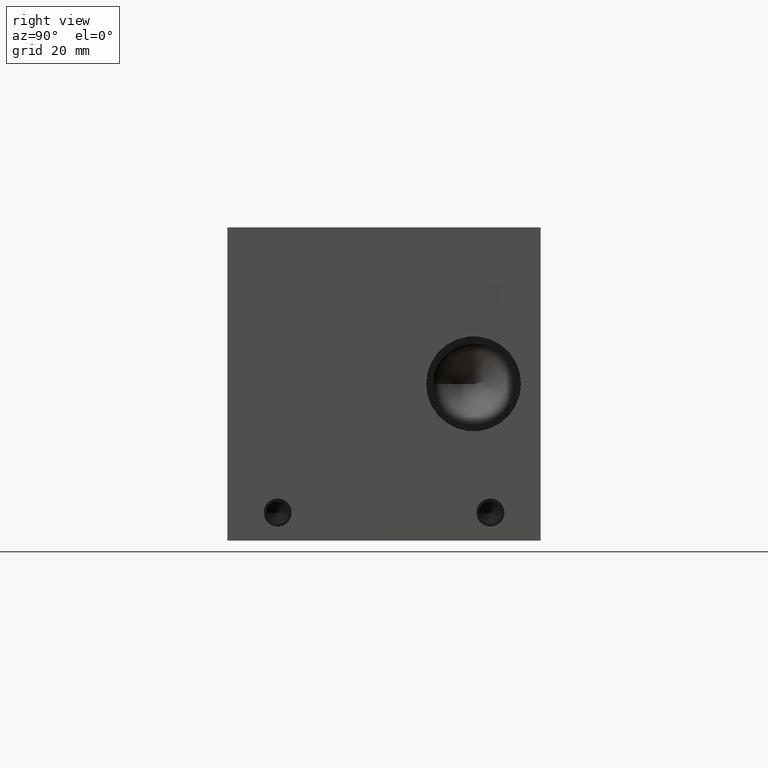
[diagram: clean part render]
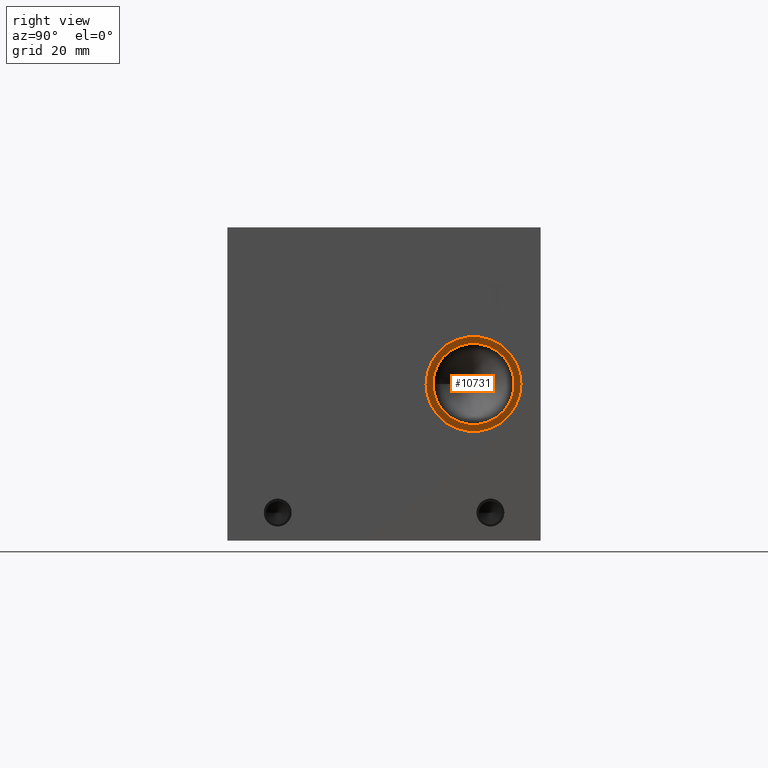
[diagram: same view with one face highlighted and labeled with its STEP entity id]
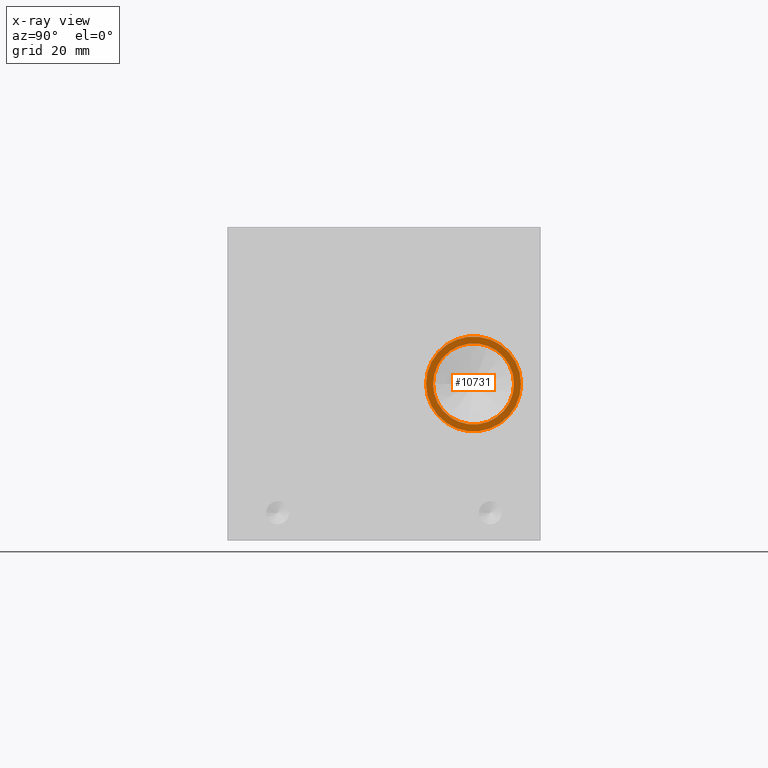
[diagram: x-ray of the same camera — body ghosted, the highlighted face saturated]
A machine part, right view. The second image highlights one B-rep face of the part: STEP entity #10731.
The next image is the same camera in x-ray: the body ghosted, the highlighted face saturated — about 0% of this face is hidden behind the body in this view.
In plain terms, the highlighted planar face has unit normal (1, 0, 0).
Its self-contained STEP definition (entity closure, byte-faithful):
#105=CIRCLE('',#11159,13.462);
#106=CIRCLE('',#11160,13.462);
#107=CIRCLE('',#11161,11.5062);
#300=FACE_BOUND('',#1866,.T.);
#1265=FACE_OUTER_BOUND('',#1865,.T.);
#1865=EDGE_LOOP('',(#9024,#9025));
#1866=EDGE_LOOP('',(#9026));
#4872=VERTEX_POINT('',#18148);
#4873=VERTEX_POINT('',#18149);
#4874=VERTEX_POINT('',#18152);
#6312=EDGE_CURVE('',#4872,#4873,#105,.T.);
#6313=EDGE_CURVE('',#4873,#4872,#106,.T.);
#6314=EDGE_CURVE('',#4874,#4874,#107,.T.);
#9024=ORIENTED_EDGE('',*,*,#6312,.T.);
#9025=ORIENTED_EDGE('',*,*,#6313,.T.);
#9026=ORIENTED_EDGE('',*,*,#6314,.F.);
#9811=PLANE('',#11158);
#10731=ADVANCED_FACE('',(#1265,#300),#9811,.T.);
#11158=AXIS2_PLACEMENT_3D('',#18147,#12969,#12970);
#11159=AXIS2_PLACEMENT_3D('',#18150,#12971,#12972);
#11160=AXIS2_PLACEMENT_3D('',#18151,#12973,#12974);
#11161=AXIS2_PLACEMENT_3D('',#18153,#12975,#12976);
#12969=DIRECTION('center_axis',(1.,0.,0.));
#12970=DIRECTION('ref_axis',(0.,1.,0.));
#12971=DIRECTION('center_axis',(1.,0.,0.));
#12972=DIRECTION('ref_axis',(0.,1.,0.));
#12973=DIRECTION('center_axis',(1.,0.,0.));
#12974=DIRECTION('ref_axis',(0.,1.,0.));
#12975=DIRECTION('center_axis',(1.,0.,0.));
#12976=DIRECTION('ref_axis',(0.,1.,0.));
#18147=CARTESIAN_POINT('Origin',(149.2504,69.85,44.45));
#18148=CARTESIAN_POINT('',(149.2504,83.312,44.45));
#18149=CARTESIAN_POINT('',(149.2504,56.388,44.45));
#18150=CARTESIAN_POINT('Origin',(149.2504,69.85,44.45));
#18151=CARTESIAN_POINT('Origin',(149.2504,69.85,44.45));
#18152=CARTESIAN_POINT('',(149.2504,58.3438,44.45));
#18153=CARTESIAN_POINT('Origin',(149.2504,69.85,44.45));